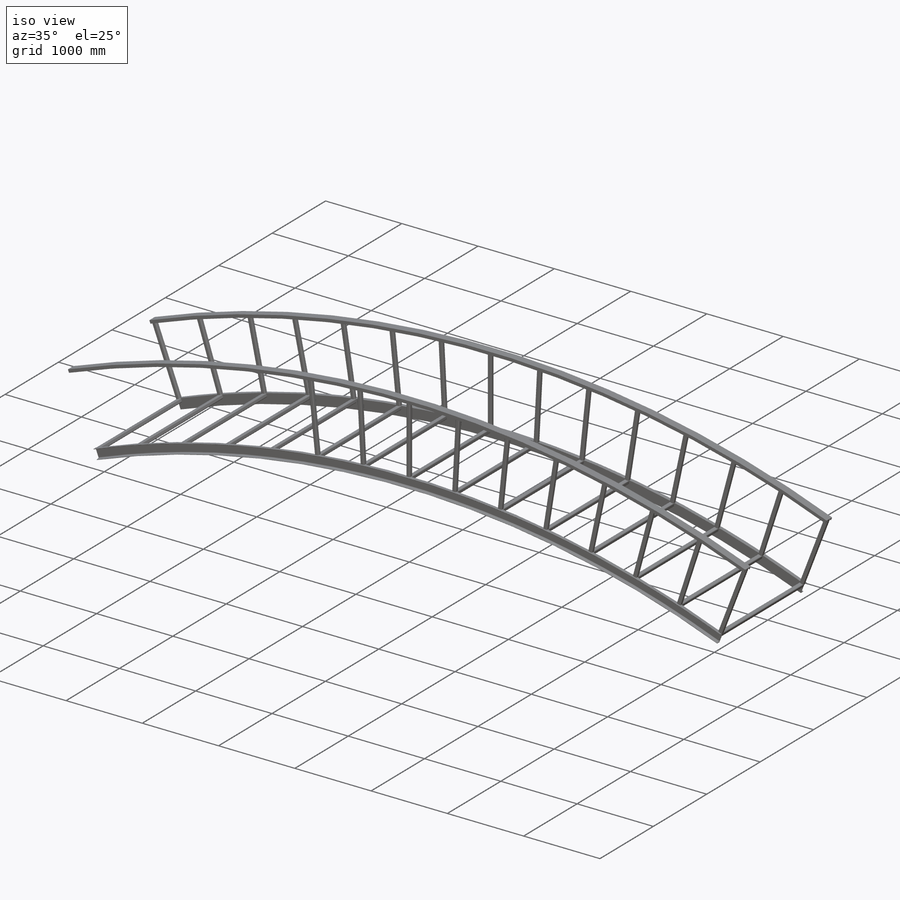
[diagram: iso view]
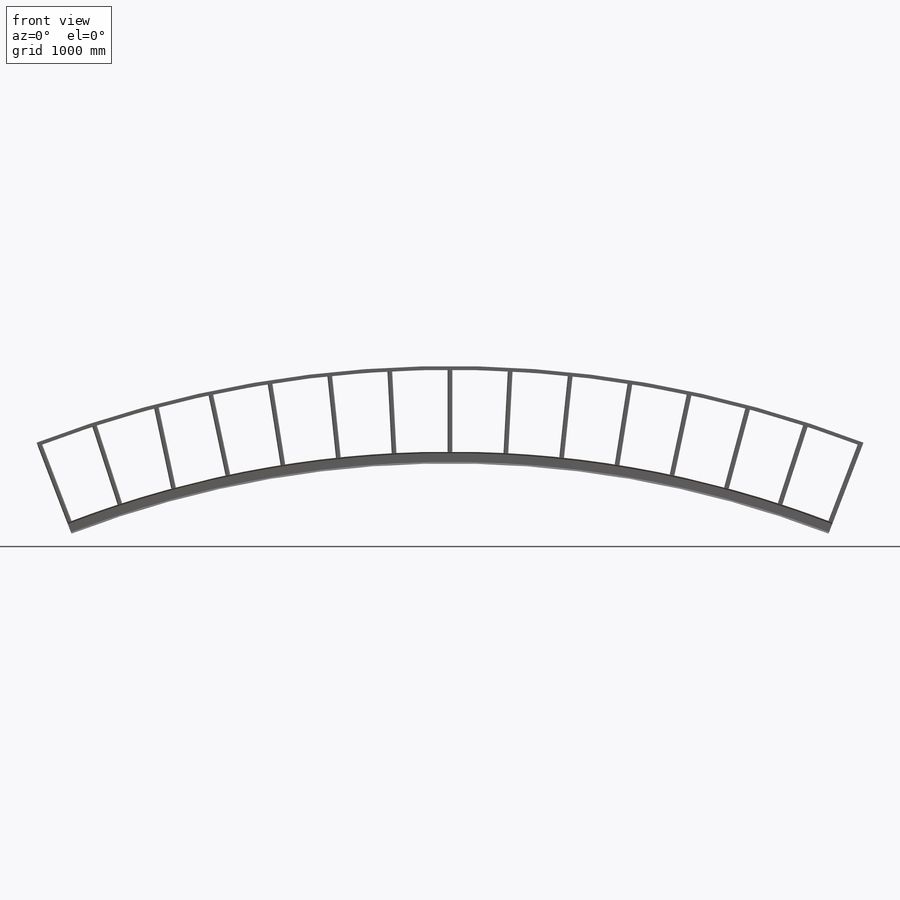
[diagram: front view]
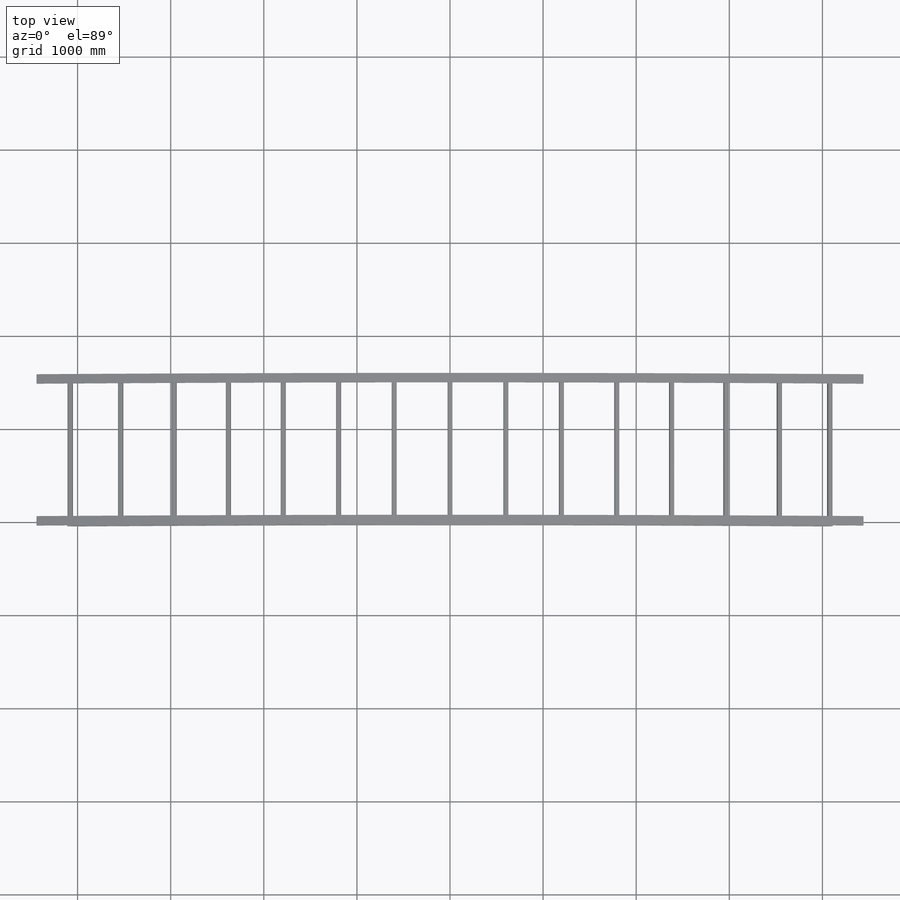
[diagram: top view]
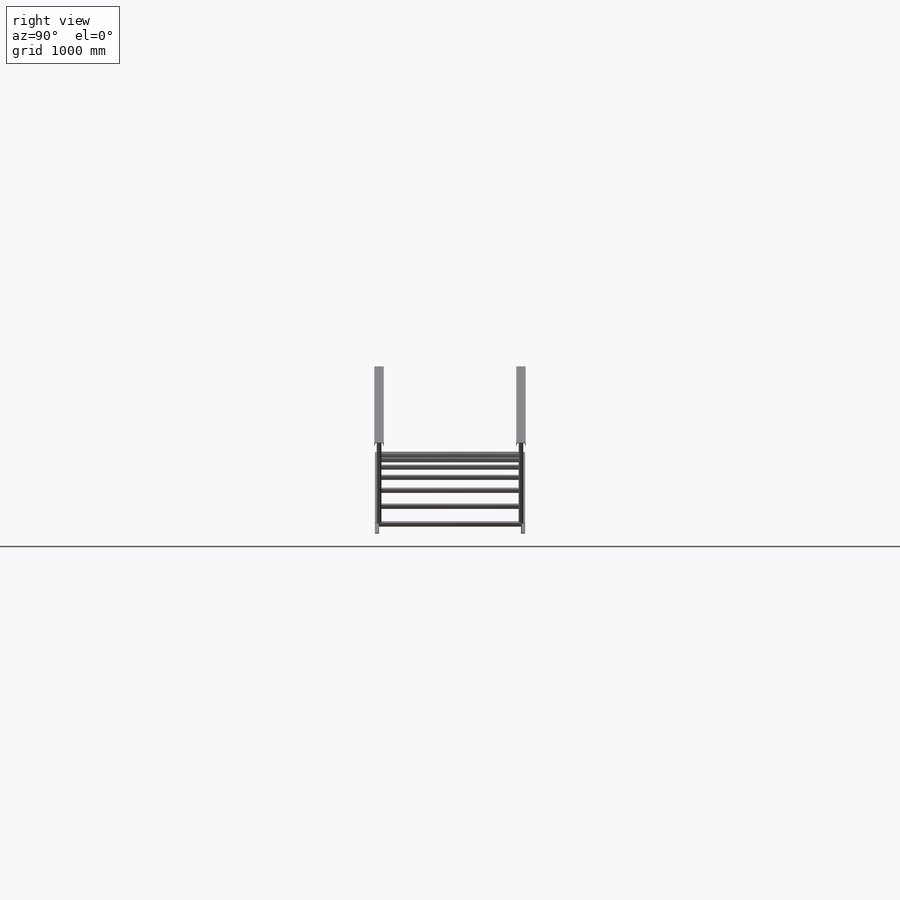
[diagram: right view]
SOLIDWORKS PART (.sldprt)
format: sldprt  version: not decoded by parser v0  size: 4,161,024 bytes
history: native  units: mm
features: sketch x12, plane x6, material x1, surface_op x1, mirror x1 (+16 scaffold rows collapsed)
feature tree (37):
  scaffold x16  (default folders/planes/origin — collapsed)
  material  "AISI 316 Annealed Stainless Steel Bar (SS)"
  sketch  "Sketch1"  dims[c1.D2=~10707.866732mm c1.D1=762.0mm c1.D3=~4039.025474mm c2.D2=7620.0mm c3.D2=~9945.866732mm c4.D2=42.0deg c5.D2=8128.0mm c5.D3=609.6mm]
  plane  "Plane1"  Offset=1524mm
  sketch  "Sketch2"  dims[D2=2540.0mm D1=~418.673117mm]
  sketch  "3DSketch1"  dims[c1.D2=~10707.866732mm c1.D1=~520.202235mm c2.D2=~510.02942mm c2.D3=~459.838283mm c2.D6=~3037.625783mm c2.D4=~410.370529mm c3.D3=508.0mm c3.D5=~590.331753mm c3.D1=508.0mm c3.D2=~10707.866732mm c4.D1=~847.065584mm c5.D1=~2.810718deg c5.D2=3.0deg c6.D2=~477.900078mm c6.D3=~477.900078mm c7.D2=~1543.300362mm c7.D1=~562.794541mm c8.D2=~562.794541mm c8.D1=~539.422731mm c9.D2=~539.422731mm c9.D1=~1381.029303mm c10.D2=~63215.510922mm c10.D1=~539.453992mm c11.D2=~539.453992mm]
  plane  "Plane2"
  sketch  "Sketch110"  dims[c1.D4=6.35mm c1.D5=6.35mm c2.D4=6.35mm c2.D5=6.35mm c2.RI=7.366mm c2.D2=3.175mm c2.RA=2.794mm c2.Depth=127.0mm c2.BF=44.45mm c2.D6=6.35mm c3.D2=45.0deg c3.D6=~9.775613mm c4.D2=12.84deg c4.TW=4.826mm c4.D7=~8.667528deg c4.D8=~7.604041mm c5.D2=~5.342953mm c5.D8=~5.388932mm c6.D2=6.35mm c6.D7=6.35mm c6.D8=5.0deg c7.D2=9.463deg c7.flange=~2.45872mm c7.TF=6.9342mm]
  sketch  "Structural Member2"
  plane  "Plane3"
  sketch  "Sketch12"  dims[c1.D1=6.35mm c1.D2=6.35mm c1.D3=6.35mm c1.D4=6.35mm c1.D5=6.35mm c1.D6=6.35mm c1.D7=6.35mm c1.D8=6.35mm c2.D1=6.604mm c2.D2=6.604mm c2.D3=6.604mm c2.D4=6.604mm c3.D1=12.7mm c3.Thickness=6.35mm c3.D4=12.9032mm c3.D5=12.9286mm c3.V_leg=50.8mm c3.H_leg=50.8mm c4.D4=50.3428mm c4.D5=50.8508mm c5.D4=~41.274964mm c5.D5=~41.274964mm]
  sketch  "Sketch13"
  surface_op  "Surface-Extrude1"
  sketch  "Sketch15"  dims[D1=914.4mm]
  sketch  "Structural Member3"
  plane  "Plane4"
  sketch  "Sketch111"  dims[c1.D4=6.35mm c1.D5=6.35mm c2.D4=6.35mm c2.D5=6.35mm c2.RI=7.112mm c2.D2=3.175mm c2.RA=2.794mm c2.Depth=101.6mm c2.BF=40.2336mm c2.D6=6.35mm c3.D2=45.0deg c3.D6=~9.775613mm c4.D2=12.84deg c4.TW=4.6736mm c4.D7=~8.667528deg c4.D8=~7.604041mm c5.D2=~5.342953mm c5.D8=~5.388932mm c6.D2=6.35mm c6.D7=6.35mm c6.D8=5.0deg c7.D2=9.463deg c7.flange=~2.18694mm c7.TF=6.9342mm]
  sketch  "Structural Member4"
  plane  "Plane5"
  sketch  "Sketch19"  dims[c1.D1=6.35mm c1.D2=6.35mm c1.D3=6.35mm c1.D4=6.35mm c1.D5=6.35mm c1.D6=6.35mm c1.D7=6.35mm c1.D8=6.35mm c2.D1=6.604mm c2.D2=6.604mm c2.D3=6.604mm c2.D4=6.604mm c3.D1=12.7mm c3.Thickness=6.35mm c3.D4=12.9032mm c3.D5=12.9286mm c3.V_leg=50.8mm c3.H_leg=50.8mm c4.D4=50.3428mm c4.D5=50.8508mm c5.D4=~41.274964mm c5.D5=~41.274964mm]
  plane  "Plane6"
  mirror  "Mirror1"
decode coverage: 8 of 14 modeling features carry decoded parameters
note: ~ marks probable driven/reference dimensions
note: suppression state not decoded; provenance and decode notes live in map.json
